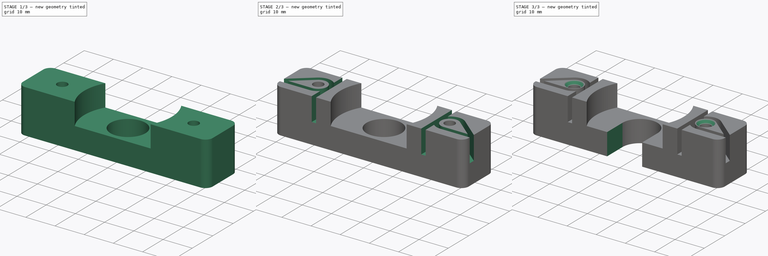
[diagram: build sequence overview — one tinted view per stage of 3, left to right]
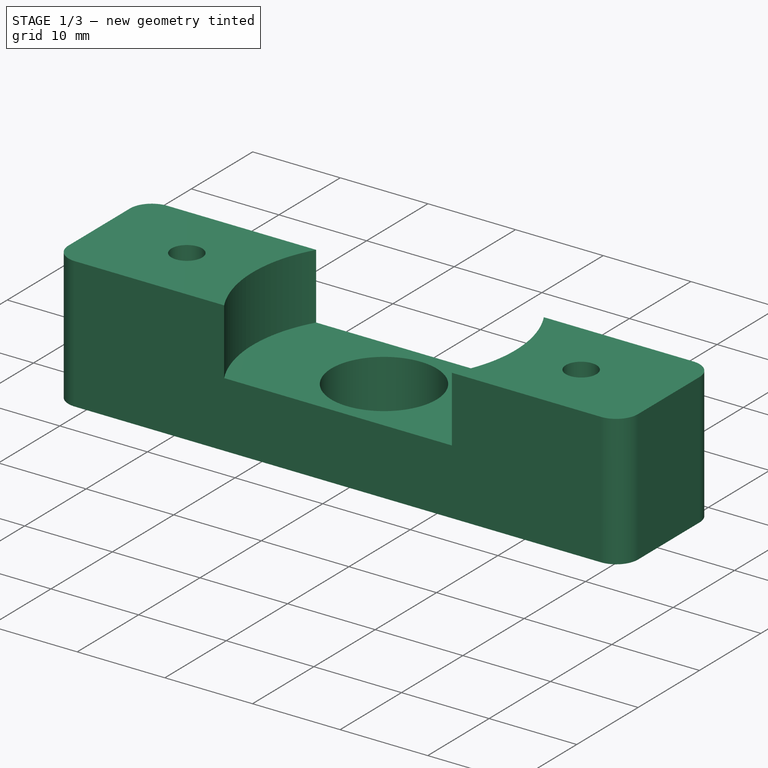
[diagram: stage 1 of 3 — iso view after this stage's code; geometry added in this stage tinted green]
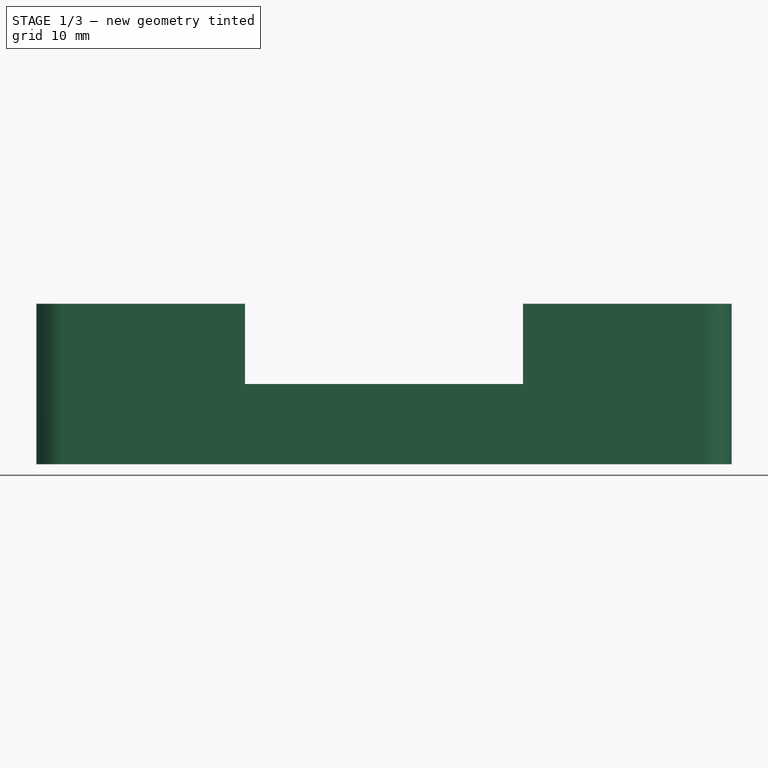
[diagram: stage 1 of 3 — front view after this stage's code; geometry added in this stage tinted green]
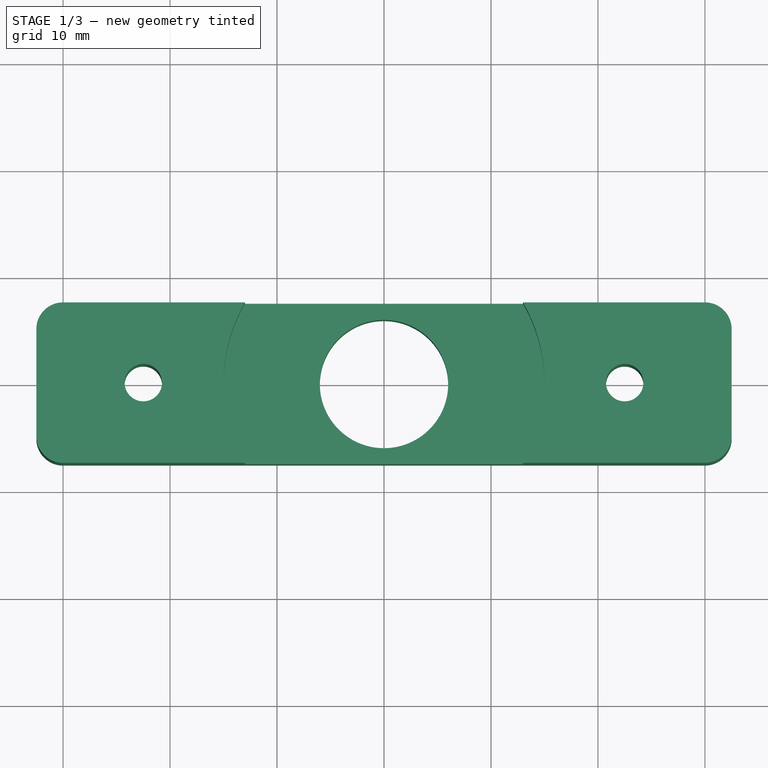
[diagram: stage 1 of 3 — top view after this stage's code; geometry added in this stage tinted green]
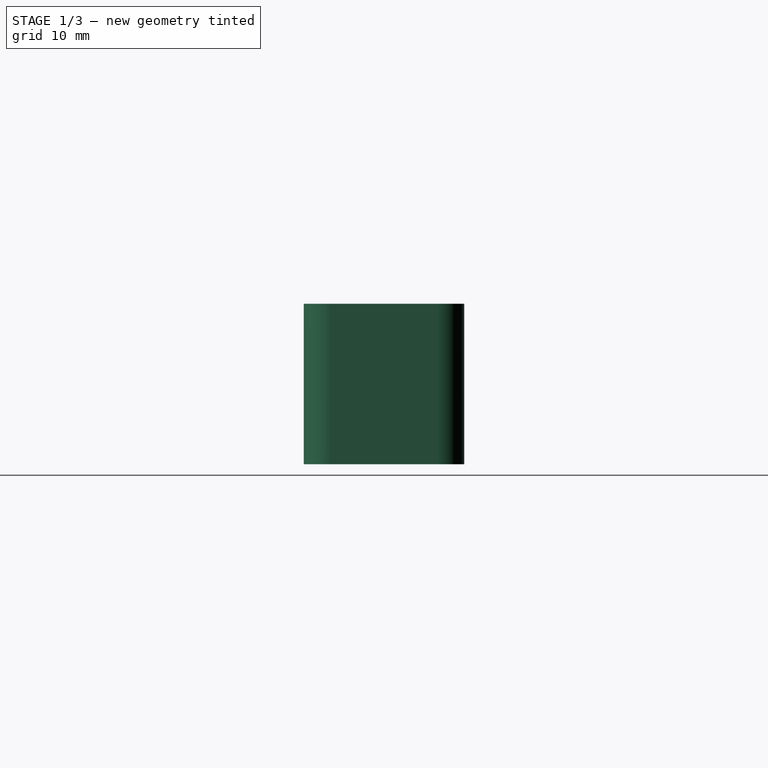
[diagram: stage 1 of 3 — right view after this stage's code; geometry added in this stage tinted green]
FCSTD DOCUMENT  (FreeCAD 0.19R24276 (Git))
Label: 3DX0_X_belt_locker
License: All rights reserved
LicenseURL: http://en.wikipedia.org/wiki/All_rights_reserved
objects: Sketcher::SketchObject×5, PartDesign::Pocket×4, PartDesign::Pad×1, PartDesign::Chamfer×1, PartDesign::Body×1
note: 18 computed .brp shape members not serialized (recipe doc carries the construction recipe); baked Part::Feature solids carry a one-line shape summary decoded from their .brp

FEATURE [Sketcher::SketchObject] Sketch
  FullyConstrained = true
  MapMode = 5
  Support = -> [XY_Plane]
  sketch-geometry (11):
    g0: LineSegment StartX=-30 StartY=7.5 StartZ=0 EndX=30 EndY=7.5 EndZ=0
    g1: LineSegment StartX=32.5 StartY=5 StartZ=0 EndX=32.5 EndY=-5 EndZ=0
    g2: LineSegment StartX=30 StartY=-7.5 StartZ=0 EndX=-30 EndY=-7.5 EndZ=0
    g3: LineSegment StartX=-32.5 StartY=-5 StartZ=0 EndX=-32.5 EndY=5 EndZ=0
    g4: ArcOfCircle CenterX=-30 CenterY=5 CenterZ=0 NormalX=0 NormalY=0 NormalZ=1 AngleXU=0 Radius=2.5 StartAngle=1.5708 EndAngle=3.14159
    g5: ArcOfCircle CenterX=-30 CenterY=-5 CenterZ=0 NormalX=0 NormalY=0 NormalZ=1 AngleXU=0 Radius=2.5 StartAngle=3.14159 EndAngle=4.71239
    g6: ArcOfCircle CenterX=30 CenterY=-5 CenterZ=0 NormalX=0 NormalY=0 NormalZ=1 AngleXU=0 Radius=2.5 StartAngle=4.71239 EndAngle=6.28319
    g7: ArcOfCircle CenterX=30 CenterY=5 CenterZ=0 NormalX=0 NormalY=0 NormalZ=1 AngleXU=0 Radius=2.5 StartAngle=0 EndAngle=1.5708
    g8: Circle CenterX=0 CenterY=0 CenterZ=0 NormalX=0 NormalY=0 NormalZ=1 AngleXU=0 Radius=6
    g9: Circle CenterX=-22.5 CenterY=0 CenterZ=0 NormalX=0 NormalY=0 NormalZ=1 AngleXU=0 Radius=1.75
    g10: Circle CenterX=22.5 CenterY=0 CenterZ=0 NormalX=0 NormalY=0 NormalZ=1 AngleXU=0 Radius=1.75
  constraints (26):
    c: Horizontal(g0)
    c: Horizontal(g2)
    c: Vertical(g1)
    c: Vertical(g3)
    c: Tangent(g0,g4) = 1.5708
    c: Tangent(g3,g4) = 1.5708
    c: Tangent(g2,g5) = 1.5708
    c: Tangent(g3,g5) = 1.5708
    c: Tangent(g1,g6) = 1.5708
    c: Tangent(g2,g6) = 1.5708
    c: Tangent(g0,g7) = 1.5708
    c: Tangent(g1,g7) = 1.5708
    c: Diameter(g4) = 5
    c: Equal(g4,g5)
    c: Equal(g4,g6)
    c: Equal(g4,g7)
    c: DistanceY(g2,g0) = 15
    c: DistanceX(g3,g1) = 65
    c: Symmetric(g4,g6,g-1)
    c: Coincident(g8,g-1)
    c: Diameter(g8) = 12
    c: PointOnObject(g9,g-1)
    c: Diameter(g9) = 3.5
    c: Equal(g9,g10)
    c: DistanceX(g9,g10) = 45
    c: Symmetric(g9,g10,g8)
FEATURE [PartDesign::Pad] Pad
  Direction = (1,1,1)
  Length = 15
  Length2 = 100
  Profile = -> Sketch
  Type = 0
FEATURE [Sketcher::SketchObject] Sketch001
  FullyConstrained = true
  MapMode = 5
  Placement = pos=(0,0,15) rot=(0,0,1;0rad)
  Support = -> [Pad]
  sketch-geometry (1):
    g0: Circle CenterX=0 CenterY=0 CenterZ=0 NormalX=0 NormalY=0 NormalZ=1 AngleXU=0 Radius=15
  constraints (2):
    c: Coincident(g0,g-1)
    c: Diameter(g0) = 30
FEATURE [PartDesign::Pocket] Pocket
  BaseFeature = -> Pad
  Length = 7.5
  Length2 = 100
  Profile = -> Sketch001
  Type = 0
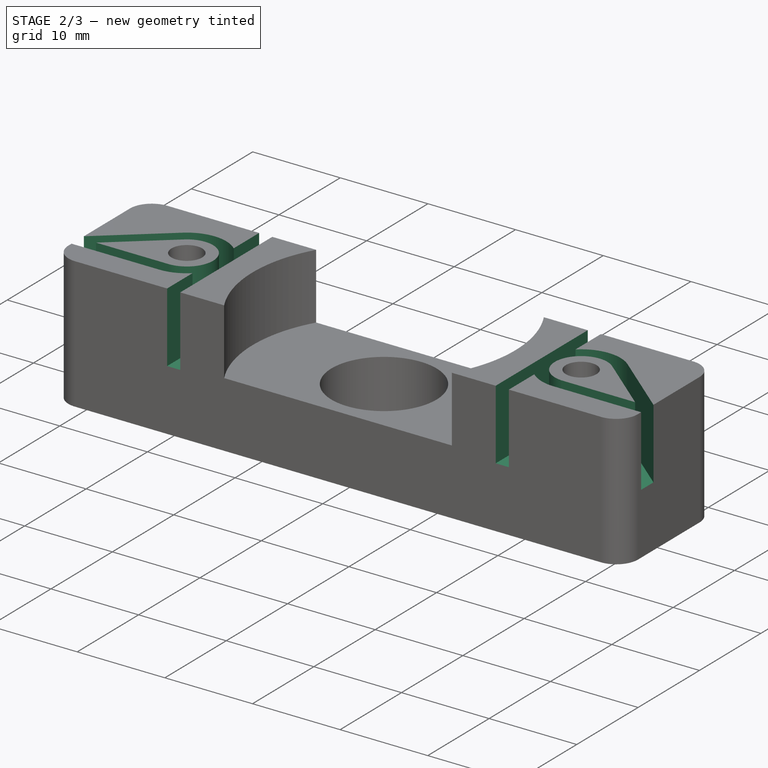
[diagram: stage 2 of 3 — iso view after this stage's code; geometry added in this stage tinted green]
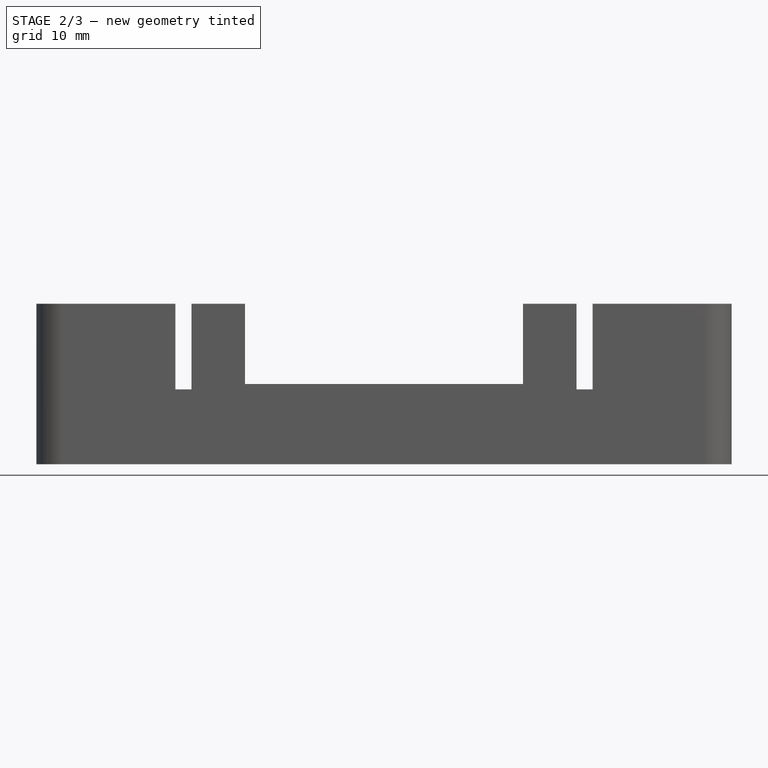
[diagram: stage 2 of 3 — front view after this stage's code; geometry added in this stage tinted green]
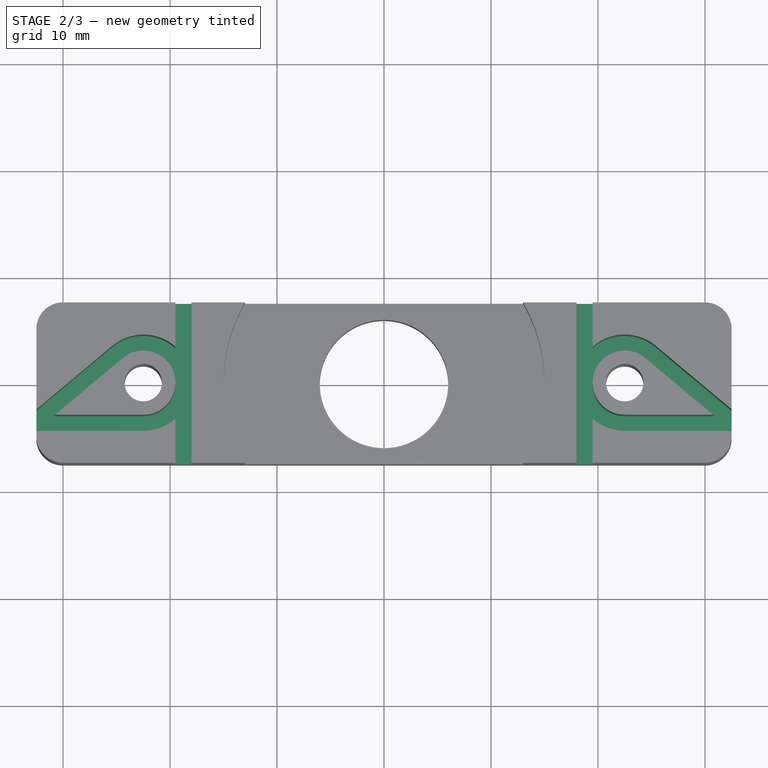
[diagram: stage 2 of 3 — top view after this stage's code; geometry added in this stage tinted green]
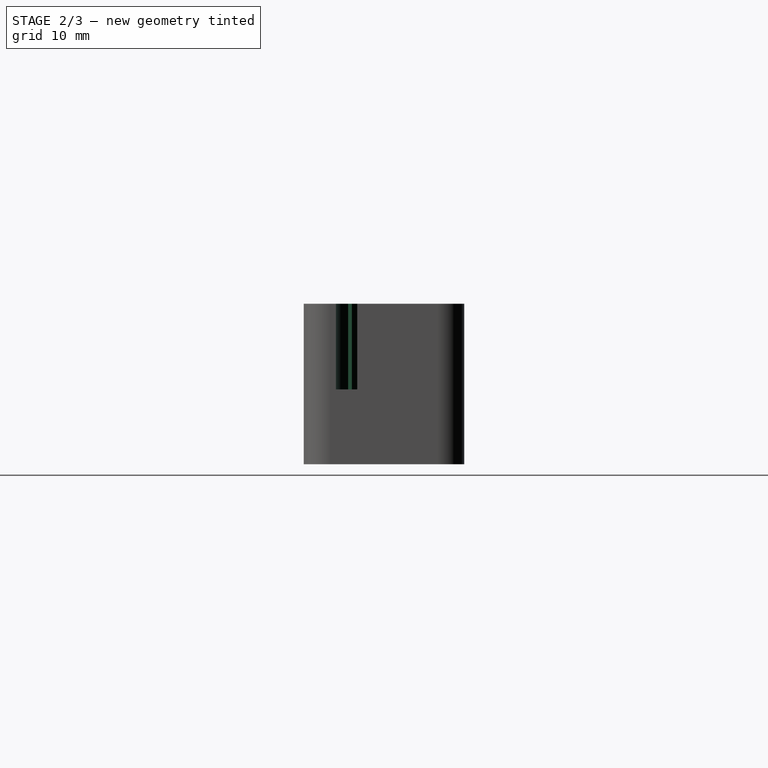
[diagram: stage 2 of 3 — right view after this stage's code; geometry added in this stage tinted green]
FEATURE [Sketcher::SketchObject] Sketch002
  ExternalGeometry = -> [Pocket]
  FullyConstrained = true
  MapMode = 5
  Placement = pos=(0,0,15) rot=(0,0,1;0rad)
  Support = -> [Pocket]
  sketch-geometry (8):
    g0: LineSegment StartX=-19.5 StartY=7.5 StartZ=0 EndX=-18 EndY=7.5 EndZ=0
    g1: LineSegment StartX=-18 StartY=7.5 StartZ=0 EndX=-18 EndY=-7.5 EndZ=0
    g2: LineSegment StartX=-18 StartY=-7.5 StartZ=0 EndX=-19.5 EndY=-7.5 EndZ=0
    g3: LineSegment StartX=-19.5 StartY=-7.5 StartZ=0 EndX=-19.5 EndY=7.5 EndZ=0
    g4: LineSegment StartX=18 StartY=7.5 StartZ=0 EndX=19.5 EndY=7.5 EndZ=0
    g5: LineSegment StartX=19.5 StartY=7.5 StartZ=0 EndX=19.5 EndY=-7.5 EndZ=0
    g6: LineSegment StartX=19.5 StartY=-7.5 StartZ=0 EndX=18 EndY=-7.5 EndZ=0
    g7: LineSegment StartX=18 StartY=-7.5 StartZ=0 EndX=18 EndY=7.5 EndZ=0
  constraints (24):
    c: Coincident(g0,g1)
    c: Coincident(g1,g2)
    c: Coincident(g2,g3)
    c: Coincident(g3,g0)
    c: Horizontal(g0)
    c: Horizontal(g2)
    c: Vertical(g1)
    c: Vertical(g3)
    c: Coincident(g4,g5)
    c: Coincident(g5,g6)
    c: Coincident(g6,g7)
    c: Coincident(g7,g4)
    c: Horizontal(g4)
    c: Horizontal(g6)
    c: Vertical(g5)
    c: Vertical(g7)
    c: Equal(g0,g4)
    c: DistanceX(g0,g0) = 1.5
    c: PointOnObject(g0,g-7)
    c: PointOnObject(g4,g-8)
    c: PointOnObject(g1,g-9)
    c: PointOnObject(g5,g-10)
    c: DistanceX(g-5,g0) = 3
    c: DistanceX(g5,g-6) = 3
FEATURE [PartDesign::Pocket] Pocket001
  BaseFeature = -> Pocket
  Length = 8
  Length2 = 100
  Profile = -> Sketch002
  Type = 0
FEATURE [Sketcher::SketchObject] Sketch003
  ExternalGeometry = -> [Pocket001]
  FullyConstrained = true
  MapMode = 5
  Placement = pos=(0,0,15) rot=(0,0,1;0rad)
  Support = -> [Pocket001]
  sketch-geometry (18):
    g0: LineSegment StartX=-22.5 StartY=-3 StartZ=0 EndX=-30.7601 EndY=-3 EndZ=0
    g1: LineSegment StartX=-30.7601 StartY=-3 StartZ=0 EndX=-24.4252 EndY=2.30079 EndZ=0
    g2: LineSegment StartX=-22.5 StartY=0 StartZ=0 EndX=-22.5 EndY=-7.5 EndZ=0
    g3: LineSegment StartX=-22.5 StartY=-4.5 StartZ=0 EndX=-32.5 EndY=-4.5 EndZ=0
    g4: LineSegment StartX=-32.5 StartY=-2.5 StartZ=0 EndX=-25.3878 EndY=3.45118 EndZ=0
    g5: LineSegment StartX=-32.5 StartY=-4.5 StartZ=0 EndX=-32.5 EndY=-2.5 EndZ=0
    g6: ArcOfCircle CenterX=-22.5 CenterY=0 CenterZ=0 NormalX=0 NormalY=0 NormalZ=1 AngleXU=0 Radius=3 StartAngle=4.71239 EndAngle=8.55074
    g7: ArcOfCircle CenterX=-22.5 CenterY=0 CenterZ=0 NormalX=0 NormalY=0 NormalZ=1 AngleXU=0 Radius=4.5 StartAngle=4.71239 EndAngle=8.55074
    g8: LineSegment StartX=-30.7601 StartY=-3 StartZ=0 EndX=-19.5 EndY=6.42197 EndZ=0
    g9: LineSegment StartX=22.5 StartY=0 StartZ=0 EndX=22.5 EndY=-7.5 EndZ=0
    g10: LineSegment StartX=22.5 StartY=-4.5 StartZ=0 EndX=32.5 EndY=-4.5 EndZ=0
    g11: LineSegment StartX=22.5 StartY=-3 StartZ=0 EndX=30.7601 EndY=-3 EndZ=0
    g12: LineSegment StartX=30.7601 StartY=-3 StartZ=0 EndX=24.4252 EndY=2.30078 EndZ=0
    g13: LineSegment StartX=32.5 StartY=-2.5 StartZ=0 EndX=25.3878 EndY=3.45117 EndZ=0
    g14: LineSegment StartX=32.5 StartY=-2.5 StartZ=0 EndX=32.5 EndY=-4.5 EndZ=0
    g15: ArcOfCircle CenterX=22.5 CenterY=0 CenterZ=0 NormalX=0 NormalY=0 NormalZ=1 AngleXU=0 Radius=3 StartAngle=0.874039 EndAngle=4.71239
    g16: ArcOfCircle CenterX=22.5 CenterY=0 CenterZ=0 NormalX=0 NormalY=0 NormalZ=1 AngleXU=0 Radius=4.5 StartAngle=0.874037 EndAngle=4.71239
    g17: LineSegment StartX=30.7601 StartY=-3 StartZ=0 EndX=19.5 EndY=6.42197 EndZ=0
  constraints (54):
    c: Horizontal(g0)
    c: Coincident(g0,g1)
    c: Vertical(g2)
    c: PointOnObject(g0,g2)
    c: PointOnObject(g3,g2)
    c: Horizontal(g3)
    c: Coincident(g2,g-10)
    c: PointOnObject(g2,g-9)
    c: PointOnObject(g3,g-8)
    c: PointOnObject(g4,g-8)
    c: Parallel(g4,g1)
    c: DistanceY(g3,g4) = 2
    c: Coincident(g5,g3)
    c: Coincident(g5,g4)
    c: Coincident(g6,g2)
    c: Coincident(g6,g1)
    c: Coincident(g6,g0)
    c: Tangent(g6,g-7)
    c: DistanceY(g3,g0) = 1.5
    c: Coincident(g7,g6)
    c: Coincident(g7,g4)
    c: Coincident(g7,g3)
    c: Distance(g4,g1) = 1.5
    c: Coincident(g8,g0)
    c: PointOnObject(g1,g8)
    c: Tangent(g8,g6)
    c: PointOnObject(g8,g-7)
    c: Coincident(g9,g-3)
    c: PointOnObject(g9,g-13)
    c: Vertical(g9)
    c: PointOnObject(g10,g9)
    c: PointOnObject(g10,g-6)
    c: Horizontal(g10)
    c: PointOnObject(g11,g9)
    c: Horizontal(g11)
    c: Coincident(g12,g11)
    c: PointOnObject(g13,g-6)
    c: Parallel(g13,g12)
    c: Coincident(g14,g13)
    c: Coincident(g14,g10)
    c: DistanceY(g14,g14) = 2
    c: Coincident(g15,g9)
    c: Coincident(g15,g11)
    c: Coincident(g15,g12)
    c: Tangent(g-12,g15)
    c: Coincident(g16,g15)
    c: Coincident(g16,g10)
    c: Coincident(g16,g13)
    c: DistanceY(g10,g11) = 1.5
    c: Coincident(g17,g11)
    c: PointOnObject(g12,g17)
    c: PointOnObject(g17,g-12)
    c: Tangent(g17,g15)
    c: Distance(g12,g13) = 1.5
FEATURE [PartDesign::Pocket] Pocket002
  BaseFeature = -> Pocket001
  Length = 8
  Length2 = 100
  Profile = -> Sketch003
  Type = 0
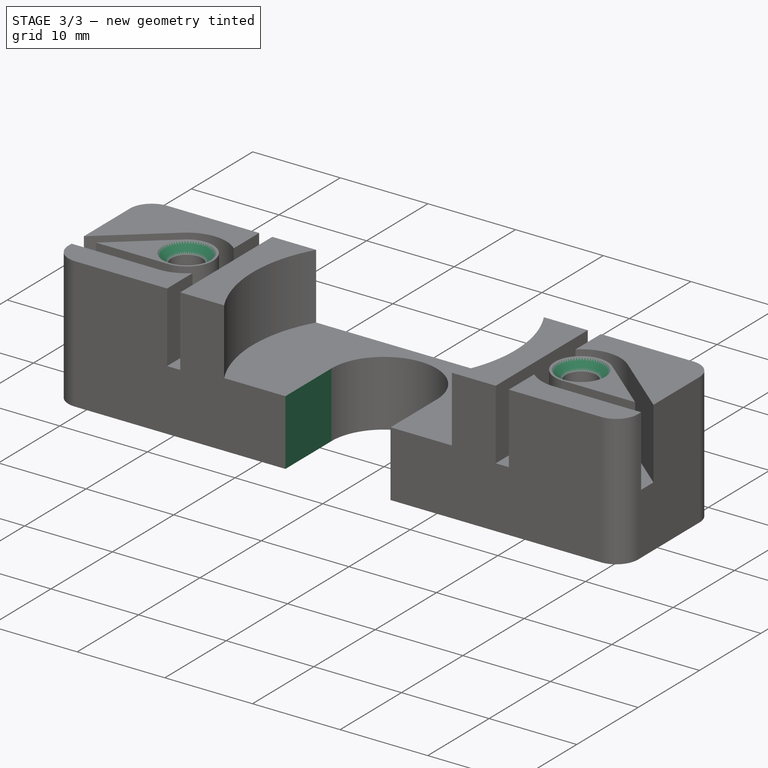
[diagram: stage 3 of 3 — iso view after this stage's code; geometry added in this stage tinted green]
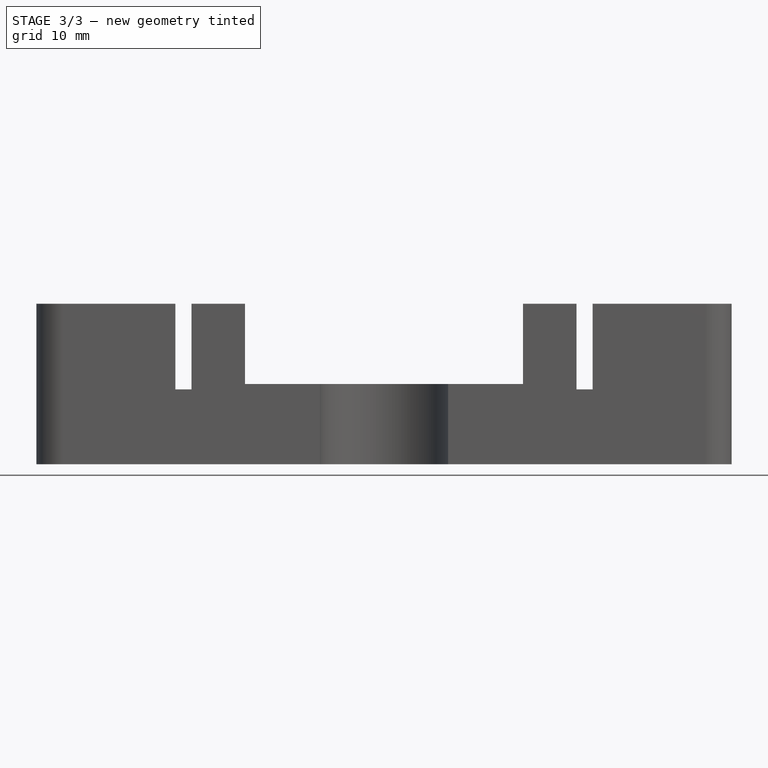
[diagram: stage 3 of 3 — front view after this stage's code; geometry added in this stage tinted green]
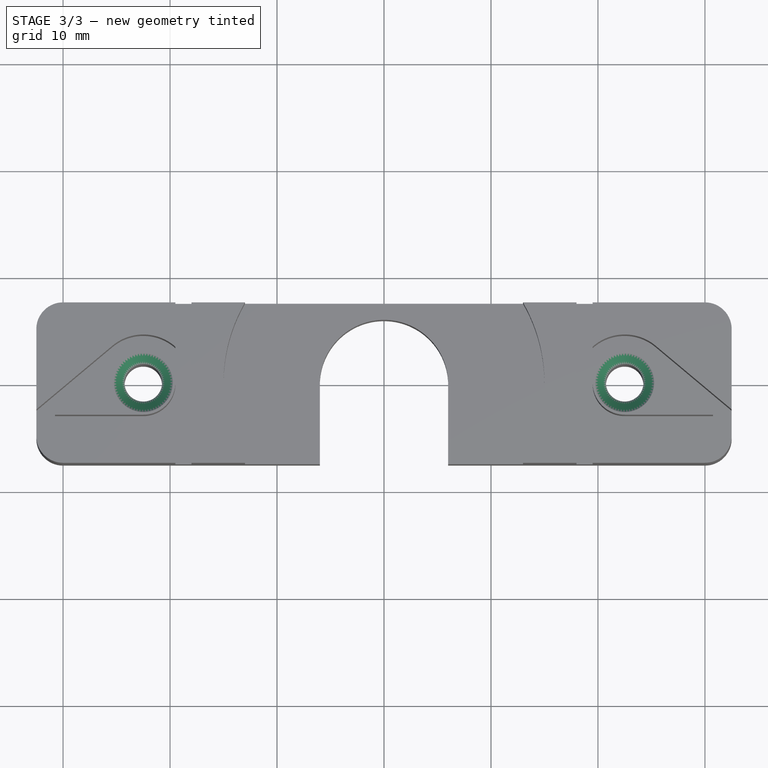
[diagram: stage 3 of 3 — top view after this stage's code; geometry added in this stage tinted green]
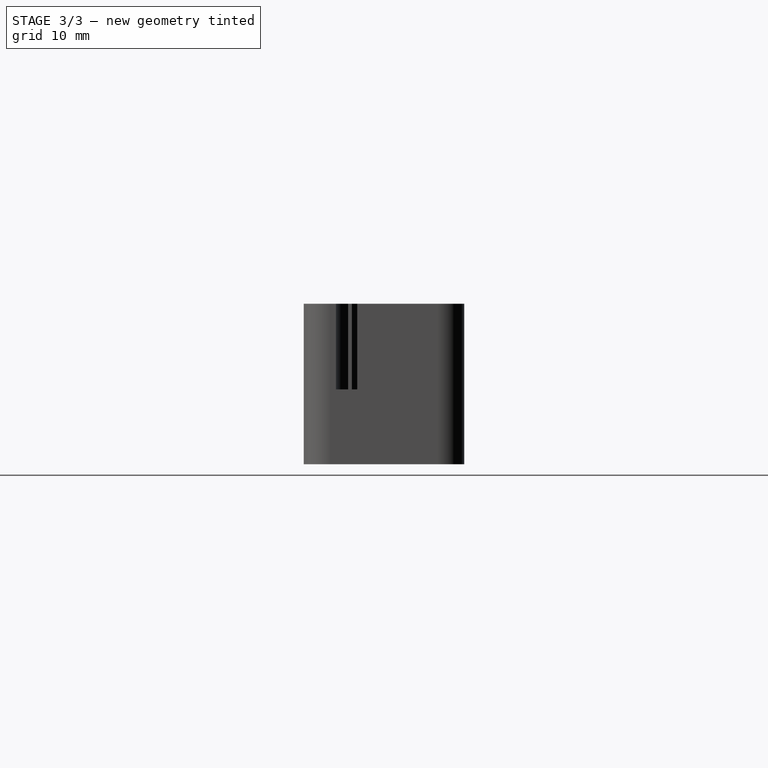
[diagram: stage 3 of 3 — right view after this stage's code; geometry added in this stage tinted green]
FEATURE [PartDesign::Chamfer] Chamfer
  Angle = 45
  Base = -> Pocket002 [Edge83,Edge81]
  BaseFeature = -> Pocket002
  ChamferType = 0
  FlipDirection = false
  Size = 1
  Size2 = 1
  SupportTransform = false
FEATURE [Sketcher::SketchObject] Sketch004
  ExternalGeometry = -> [Chamfer]
  FullyConstrained = true
  MapMode = 5
  Placement = pos=(0,0,7.5) rot=(0,0,1;0rad)
  Support = -> [Chamfer]
  sketch-geometry (4):
    g0: LineSegment StartX=-6 StartY=0 StartZ=0 EndX=6 EndY=0 EndZ=0
    g1: LineSegment StartX=6 StartY=0 StartZ=0 EndX=6 EndY=-10 EndZ=0
    g2: LineSegment StartX=6 StartY=-10 StartZ=0 EndX=-6 EndY=-10 EndZ=0
    g3: LineSegment StartX=-6 StartY=-10 StartZ=0 EndX=-6 EndY=0 EndZ=0
  constraints (12):
    c: Coincident(g0,g1)
    c: Coincident(g1,g2)
    c: Coincident(g2,g3)
    c: Coincident(g3,g0)
    c: Horizontal(g0)
    c: Horizontal(g2)
    c: Vertical(g1)
    c: Vertical(g3)
    c: PointOnObject(g0,g-3)
    c: PointOnObject(g0,g-3)
    c: PointOnObject(g0,g-1)
    c: DistanceY(g3,g3) = 10
FEATURE [PartDesign::Pocket] Pocket003
  BaseFeature = -> Chamfer
  Length = 10
  Length2 = 100
  Profile = -> Sketch004
  Type = 0
FEATURE [PartDesign::Body] Body
  Group = -> [Sketch,Pad,Sketch001,Pocket,Sketch002,Pocket001,Sketch003,Pocket002,Chamfer,Sketch004,Pocket003]
  Origin = -> Origin
  Tip = -> Pocket003
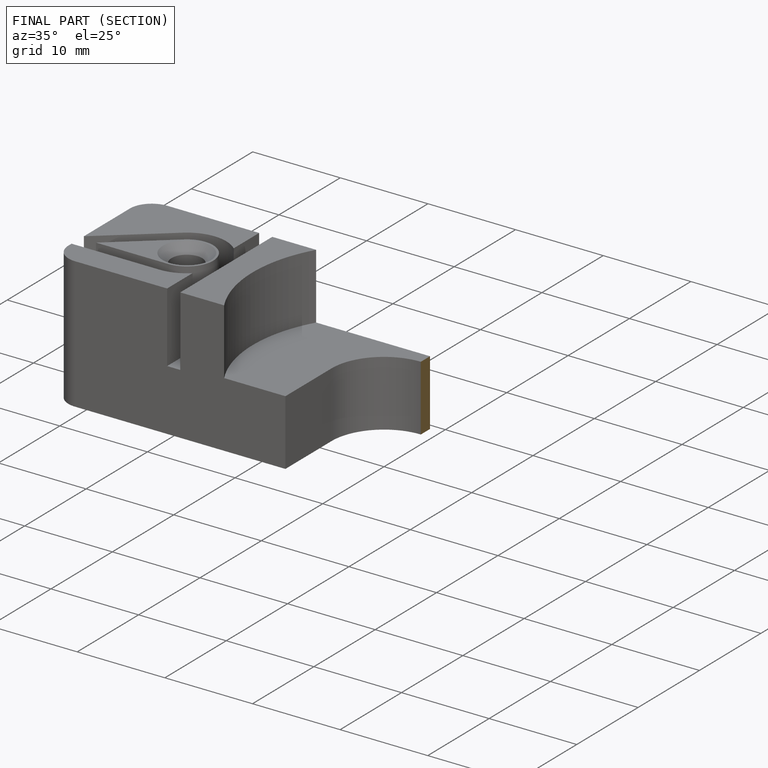
[diagram: finished part — half-section view (interior)]
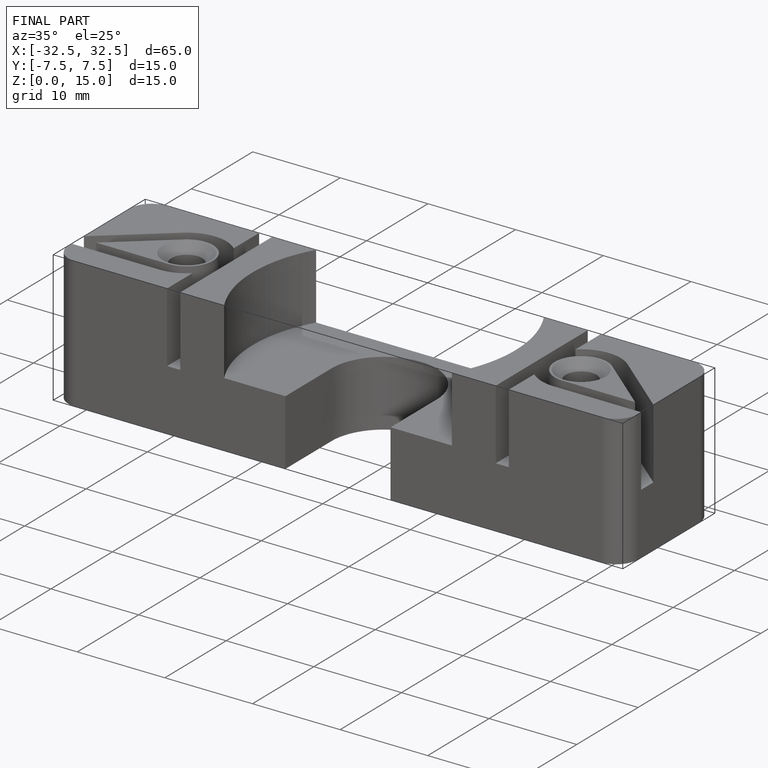
[diagram: finished part — iso view with bounding-box wireframe]
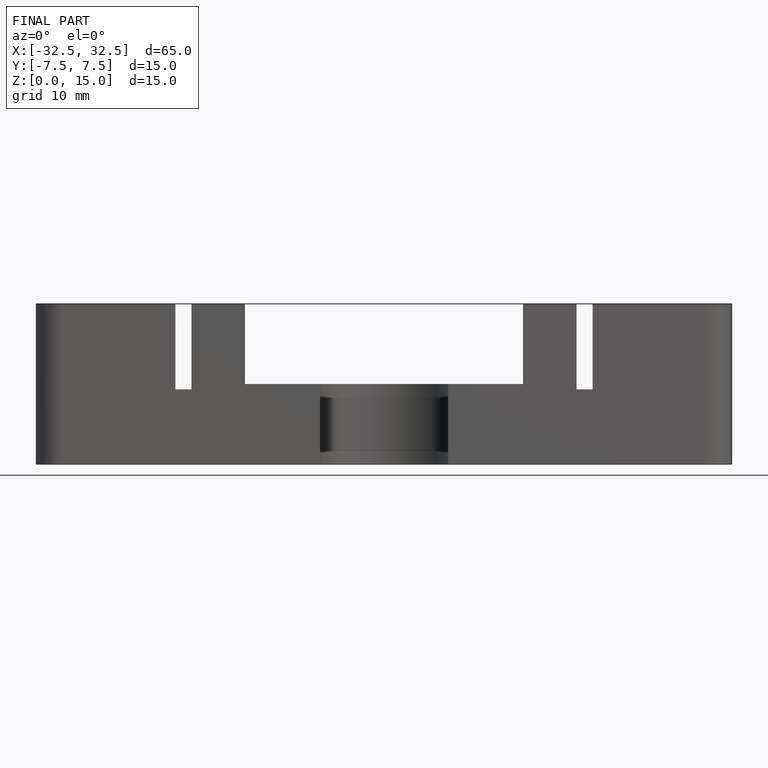
[diagram: finished part — front view with bounding-box wireframe]
